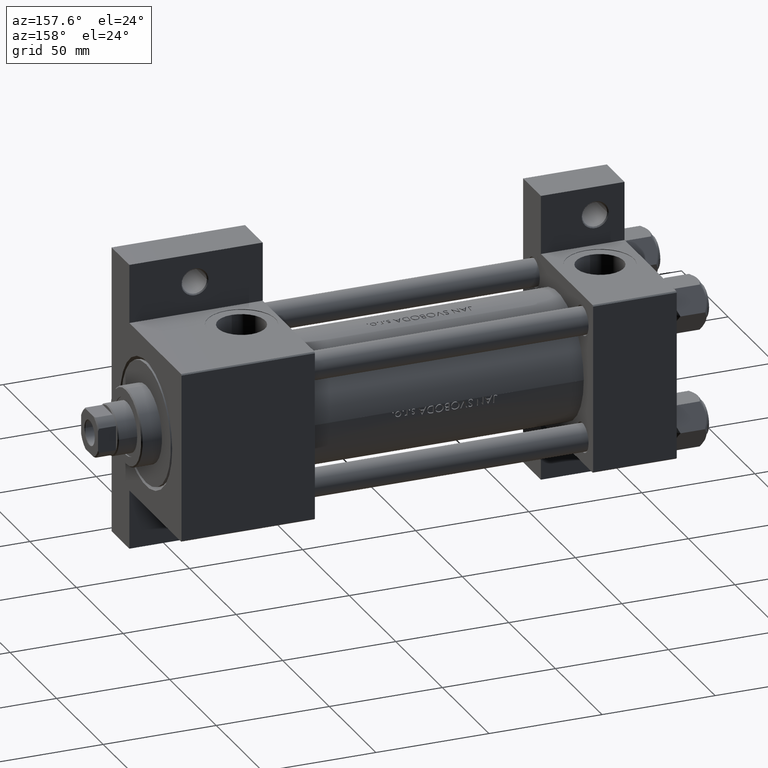
[diagram: clean part render]
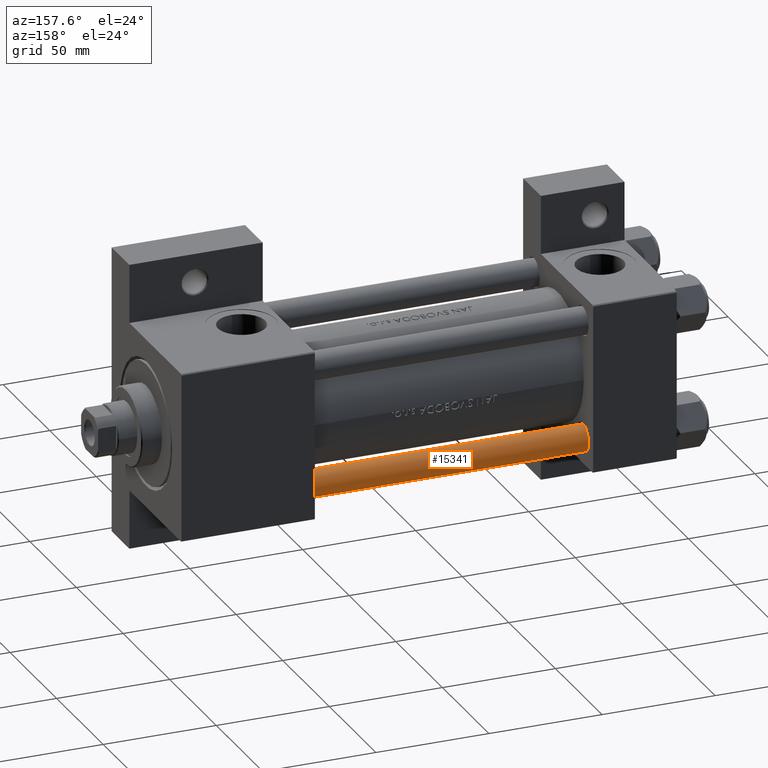
[diagram: same view with one face highlighted and labeled with its STEP entity id]
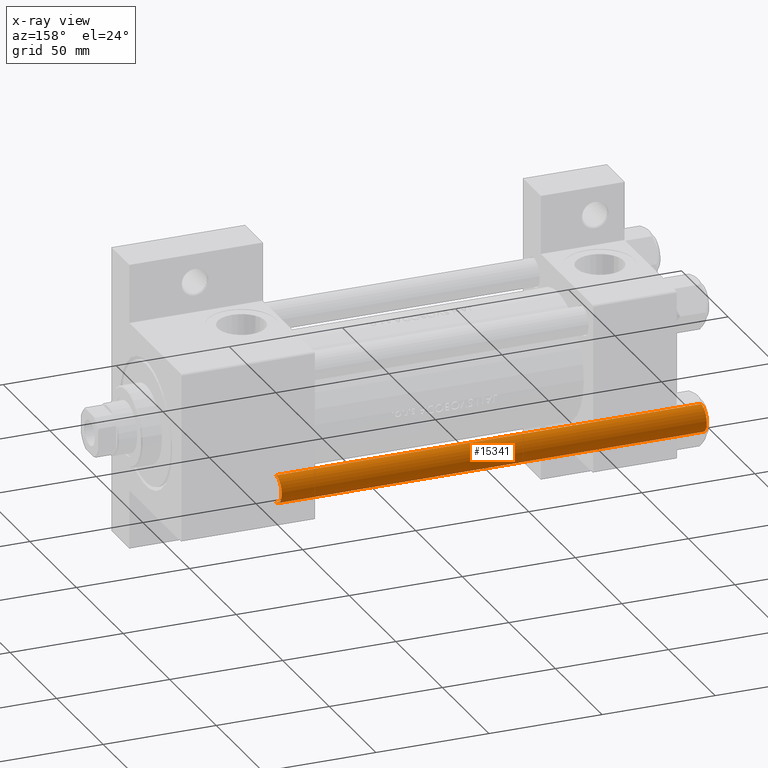
[diagram: x-ray of the same camera — body ghosted, the highlighted face saturated]
A machine part, auxiliary view. The second image highlights one B-rep face of the part: STEP entity #15341.
The next image is the same camera in x-ray: the body ghosted, the highlighted face saturated — about 0% of this face is hidden behind the body in this view.
In plain terms, the highlighted cylindrical surface (edge-blend (fillet) strip) has radius 6 mm, axis along (1, -0, -0).
Its self-contained STEP definition (entity closure, byte-faithful):
#1407 = VERTEX_POINT ( 'NONE', #23691 ) ;
#2684 = LINE ( 'NONE', #44793, #44114 ) ;
#4842 = DIRECTION ( 'NONE',  ( 0.000000000000000000, 0.000000000000000000, -1.000000000000000000 ) ) ;
#6911 = DIRECTION ( 'NONE',  ( -0.000000000000000000, -0.000000000000000000, -1.000000000000000000 ) ) ;
#7678 = VERTEX_POINT ( 'NONE', #42475 ) ;
#9136 = LINE ( 'NONE', #29096, #47314 ) ;
#15341 = ADVANCED_FACE ( 'NONE', ( #48845 ), #29218, .T. ) ;
#18220 = CARTESIAN_POINT ( 'NONE',  ( 0.000000000000000000, 0.000000000000000000, 189.0000000000000000 ) ) ;
#18703 = DIRECTION ( 'NONE',  ( -0.000000000000000000, -0.000000000000000000, -1.000000000000000000 ) ) ;
#19186 = CARTESIAN_POINT ( 'NONE',  ( 6.000000000000000888, 7.347880794884120722E-16, 188.4999999999999432 ) ) ;
#20843 = DIRECTION ( 'NONE',  ( -0.000000000000000000, -0.000000000000000000, -1.000000000000000000 ) ) ;
#21244 = AXIS2_PLACEMENT_3D ( 'NONE', #18220, #18703, #29939 ) ;
#23358 = CARTESIAN_POINT ( 'NONE',  ( 0.000000000000000000, 0.000000000000000000, 0.5000000000000281997 ) ) ;
#23476 = AXIS2_PLACEMENT_3D ( 'NONE', #23358, #46530, #31595 ) ;
#23691 = CARTESIAN_POINT ( 'NONE',  ( 6.000000000000000888, 7.347880794884120722E-16, 0.5000000000000281997 ) ) ;
#25881 = CIRCLE ( 'NONE', #23476, 6.000000000000000888 ) ;
#28350 = EDGE_LOOP ( 'NONE', ( #36348, #28774, #32734, #43689 ) ) ;
#28774 = ORIENTED_EDGE ( 'NONE', *, *, #45250, .T. ) ;
#29096 = CARTESIAN_POINT ( 'NONE',  ( -6.000000000000000888, 0.000000000000000000, 189.0000000000000000 ) ) ;
#29218 = CYLINDRICAL_SURFACE ( 'NONE', #21244, 6.000000000000000888 ) ;
#29939 = DIRECTION ( 'NONE',  ( -1.000000000000000000, 0.000000000000000000, 0.000000000000000000 ) ) ;
#30722 = AXIS2_PLACEMENT_3D ( 'NONE', #47689, #4842, #35520 ) ;
#31595 = DIRECTION ( 'NONE',  ( 1.000000000000000000, 0.000000000000000000, 0.000000000000000000 ) ) ;
#32734 = ORIENTED_EDGE ( 'NONE', *, *, #40719, .T. ) ;
#33848 = VERTEX_POINT ( 'NONE', #19186 ) ;
#35520 = DIRECTION ( 'NONE',  ( 1.000000000000000000, 0.000000000000000000, 0.000000000000000000 ) ) ;
#36066 = CARTESIAN_POINT ( 'NONE',  ( -6.000000000000000888, 0.000000000000000000, 0.5000000000000281997 ) ) ;
#36348 = ORIENTED_EDGE ( 'NONE', *, *, #42210, .T. ) ;
#38798 = EDGE_CURVE ( 'NONE', #7678, #38827, #9136, .T. ) ;
#38827 = VERTEX_POINT ( 'NONE', #36066 ) ;
#40719 = EDGE_CURVE ( 'NONE', #1407, #38827, #25881, .T. ) ;
#42210 = EDGE_CURVE ( 'NONE', #7678, #33848, #48217, .T. ) ;
#42475 = CARTESIAN_POINT ( 'NONE',  ( -6.000000000000000888, 0.000000000000000000, 188.4999999999999432 ) ) ;
#43689 = ORIENTED_EDGE ( 'NONE', *, *, #38798, .F. ) ;
#44114 = VECTOR ( 'NONE', #6911, 1000.000000000000000 ) ;
#44793 = CARTESIAN_POINT ( 'NONE',  ( 6.000000000000000888, 7.347880794884120722E-16, 189.0000000000000000 ) ) ;
#45250 = EDGE_CURVE ( 'NONE', #33848, #1407, #2684, .T. ) ;
#46530 = DIRECTION ( 'NONE',  ( -0.000000000000000000, -0.000000000000000000, 1.000000000000000000 ) ) ;
#47314 = VECTOR ( 'NONE', #20843, 1000.000000000000000 ) ;
#47689 = CARTESIAN_POINT ( 'NONE',  ( 0.000000000000000000, 0.000000000000000000, 188.4999999999999432 ) ) ;
#48217 = CIRCLE ( 'NONE', #30722, 6.000000000000000888 ) ;
#48845 = FACE_OUTER_BOUND ( 'NONE', #28350, .T. ) ;